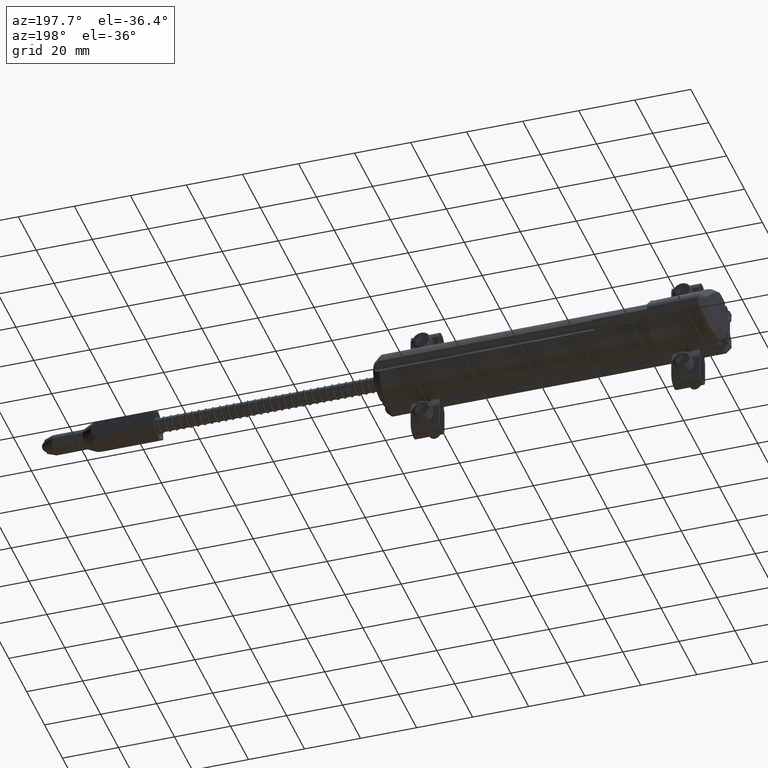
[diagram: clean part render]
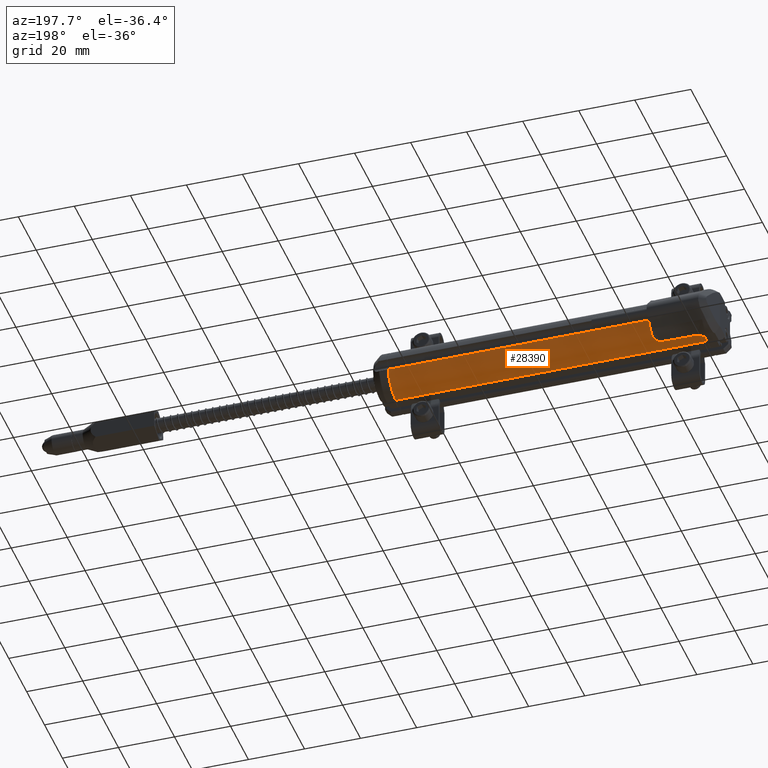
[diagram: same view with one face highlighted and labeled with its STEP entity id]
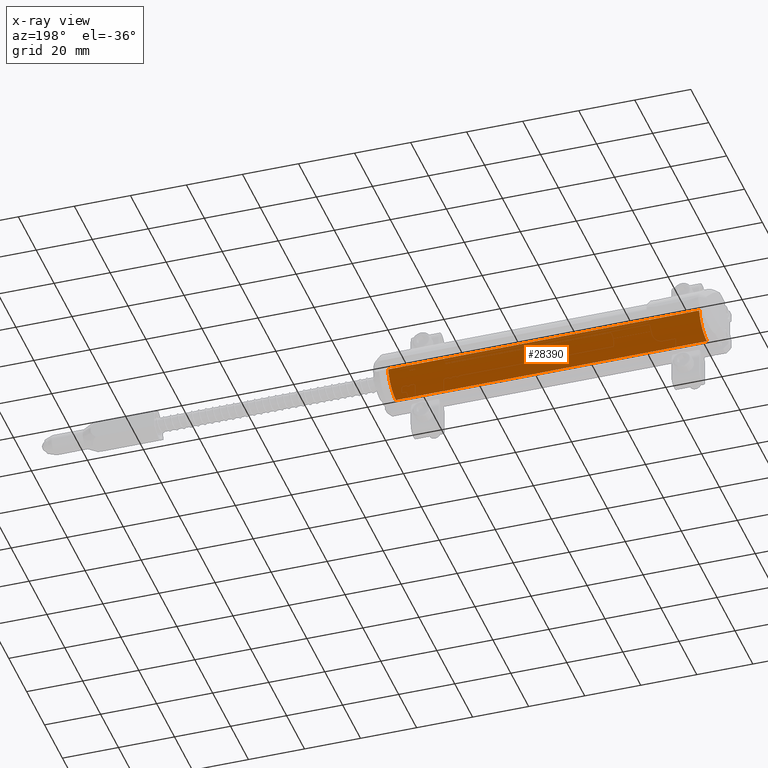
[diagram: x-ray of the same camera — body ghosted, the highlighted face saturated]
A machine part, auxiliary view. The second image highlights one B-rep face of the part: STEP entity #28390.
The next image is the same camera in x-ray: the body ghosted, the highlighted face saturated — about 0% of this face is hidden behind the body in this view.
In plain terms, the highlighted cylindrical surface (edge-blend (fillet) strip) has radius 9 mm, axis along (-1, 0, -0).
Its self-contained STEP definition (entity closure, byte-faithful):
#2069 = EDGE_CURVE ( 'NONE', #33654, #25708, #12878, .T. ) ;
#2830 = CARTESIAN_POINT ( 'NONE',  ( -0.1574803149606300579, 0.03856533019685044056, -0.3543307086614169155 ) ) ;
#3698 = AXIS2_PLACEMENT_3D ( 'NONE', #8192, #15737, #13805 ) ;
#4600 = EDGE_CURVE ( 'NONE', #27363, #5871, #16688, .T. ) ;
#5459 = LINE ( 'NONE', #2830, #23727 ) ;
#5547 = CYLINDRICAL_SURFACE ( 'NONE', #5802, 0.3543307086614173040 ) ;
#5630 = CARTESIAN_POINT ( 'NONE',  ( -0.1574803149606300579, 0.03856533019685044056, -0.3543307086614169155 ) ) ;
#5802 = AXIS2_PLACEMENT_3D ( 'NONE', #21911, #16452, #29492 ) ;
#5871 = VERTEX_POINT ( 'NONE', #29206 ) ;
#6932 = EDGE_CURVE ( 'NONE', #5871, #33654, #26694, .T. ) ;
#6959 = ORIENTED_EDGE ( 'NONE', *, *, #25699, .T. ) ;
#7862 = DIRECTION ( 'NONE',  ( 0.000000000000000000, -1.204669080539449590E-16, 1.000000000000000000 ) ) ;
#8192 = CARTESIAN_POINT ( 'NONE',  ( -0.1574803149606300579, 0.03856533019685044056, 4.780733988912460139E-16 ) ) ;
#10841 = CARTESIAN_POINT ( 'NONE',  ( -0.1574803149606300579, 0.3827008187179489207, -0.08438611639865156722 ) ) ;
#12878 = CIRCLE ( 'NONE', #3698, 0.3543307086614173040 ) ;
#13220 = VECTOR ( 'NONE', #21586, 39.37007874015748143 ) ;
#13310 = CARTESIAN_POINT ( 'NONE',  ( -4.527559055118110187, 0.03856533019685044056, 3.414809992080329023E-16 ) ) ;
#13805 = DIRECTION ( 'NONE',  ( 0.000000000000000000, -1.204669080539449590E-16, 1.000000000000000000 ) ) ;
#14244 = DIRECTION ( 'NONE',  ( -1.000000000000000000, 1.033975794397574105E-25, -2.391543914929064682E-17 ) ) ;
#15737 = DIRECTION ( 'NONE',  ( -1.000000000000000000, 1.033975794397574105E-25, -2.391543914929064682E-17 ) ) ;
#16452 = DIRECTION ( 'NONE',  ( -1.000000000000000000, 1.033975794397574105E-25, -2.391543914929064682E-17 ) ) ;
#16688 = CIRCLE ( 'NONE', #17782, 0.3543307086614173040 ) ;
#17782 = AXIS2_PLACEMENT_3D ( 'NONE', #13310, #31982, #7862 ) ;
#19999 = EDGE_LOOP ( 'NONE', ( #6959, #27028, #27939, #31604 ) ) ;
#21586 = DIRECTION ( 'NONE',  ( 1.000000000000000000, -1.033975794397574105E-25, 2.391543914929064682E-17 ) ) ;
#21785 = CARTESIAN_POINT ( 'NONE',  ( -0.1574803149606300579, 0.3827008187155472307, -0.08438611641395545038 ) ) ;
#21911 = CARTESIAN_POINT ( 'NONE',  ( -0.1574803149606300579, 0.03856533019685044056, 4.780733988912460139E-16 ) ) ;
#23727 = VECTOR ( 'NONE', #14244, 39.37007874015748143 ) ;
#25699 = EDGE_CURVE ( 'NONE', #25708, #27363, #5459, .T. ) ;
#25708 = VERTEX_POINT ( 'NONE', #5630 ) ;
#26694 = LINE ( 'NONE', #10841, #13220 ) ;
#27028 = ORIENTED_EDGE ( 'NONE', *, *, #4600, .T. ) ;
#27333 = CARTESIAN_POINT ( 'NONE',  ( -4.527559055118110187, 0.03856533019685044056, -0.3543307086614170265 ) ) ;
#27363 = VERTEX_POINT ( 'NONE', #27333 ) ;
#27939 = ORIENTED_EDGE ( 'NONE', *, *, #6932, .T. ) ;
#28390 = ADVANCED_FACE ( 'NONE', ( #32834 ), #5547, .T. ) ;
#29206 = CARTESIAN_POINT ( 'NONE',  ( -4.527559055118110187, 0.3827008187155472307, -0.08438611641395558916 ) ) ;
#29492 = DIRECTION ( 'NONE',  ( 0.000000000000000000, -1.204669080539449590E-16, 1.000000000000000000 ) ) ;
#31604 = ORIENTED_EDGE ( 'NONE', *, *, #2069, .T. ) ;
#31982 = DIRECTION ( 'NONE',  ( 1.000000000000000000, -1.033975794397574105E-25, 2.391543914929064682E-17 ) ) ;
#32834 = FACE_OUTER_BOUND ( 'NONE', #19999, .T. ) ;
#33654 = VERTEX_POINT ( 'NONE', #21785 ) ;